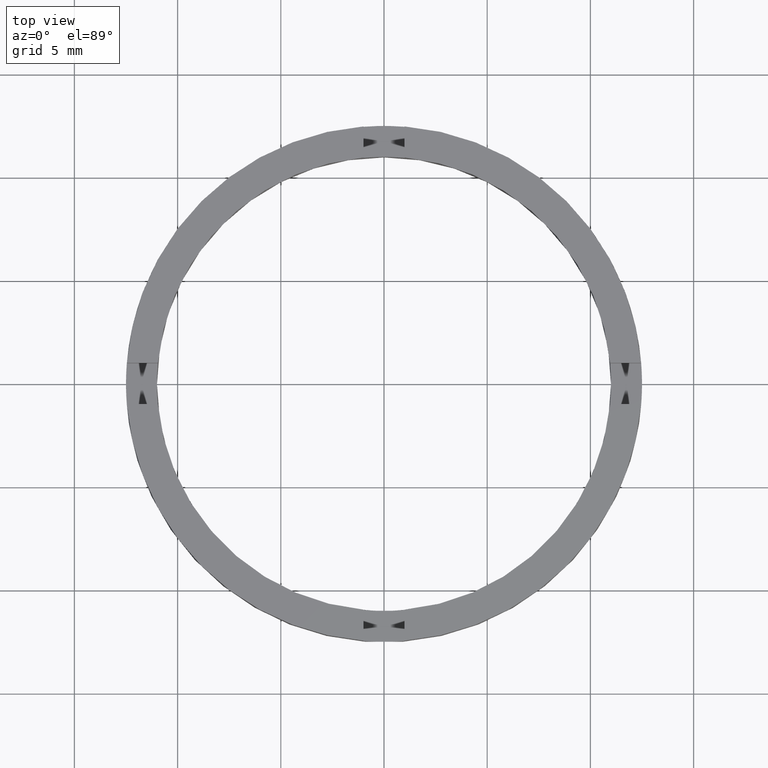
[diagram: clean part render]
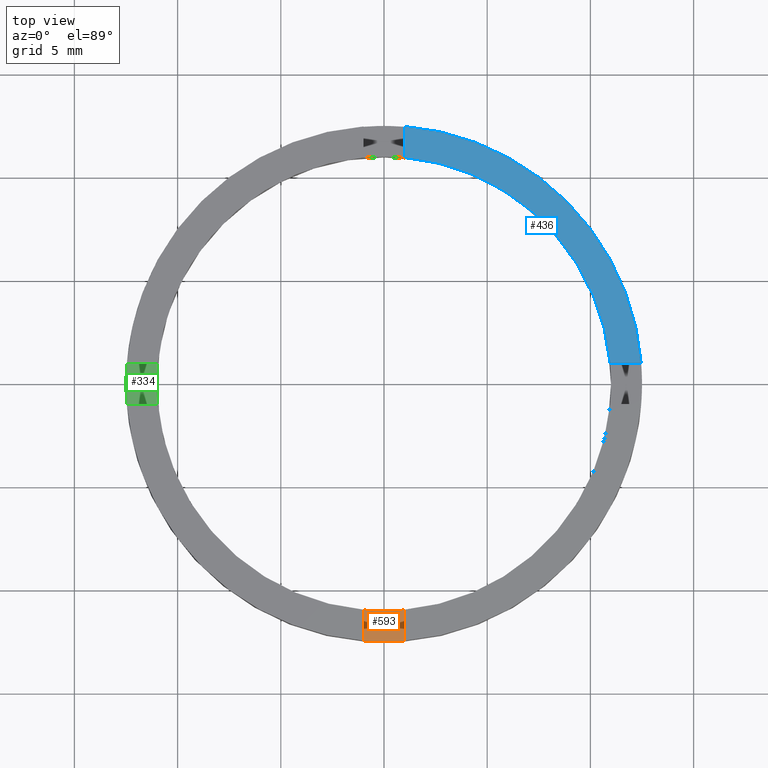
[diagram: same view with three faces highlighted in distinct colors, each labeled with its STEP entity id]
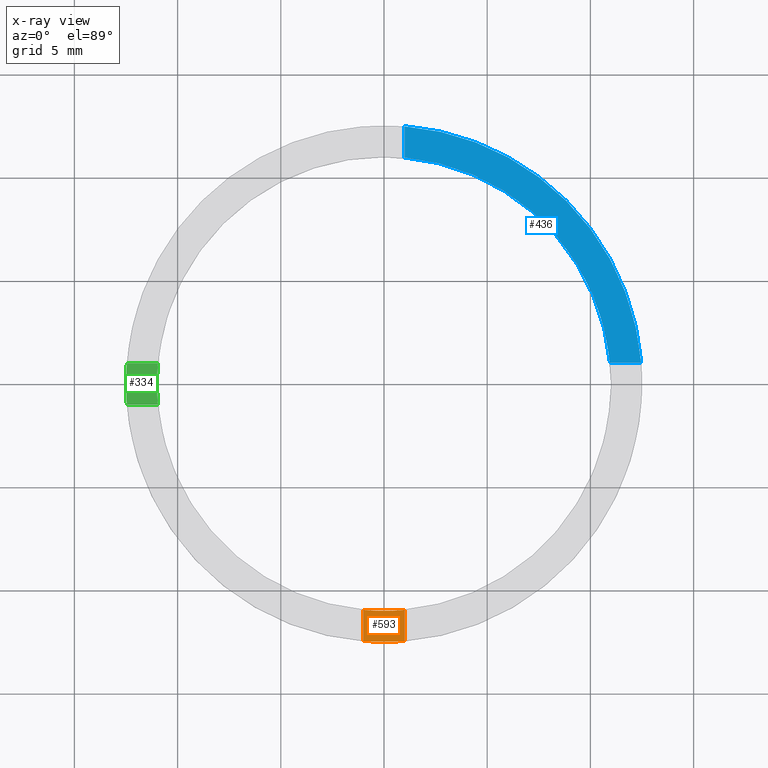
[diagram: x-ray of the same camera — body ghosted, the three highlighted faces saturated]
A machine part, top view with three faces highlighted in distinct colors.
The next image is the same camera in x-ray (body ghosted, the three faces saturated) — at least one of them is partly hidden behind the body in this view.
Their STEP definitions:

[orange] entity #593 — the highlighted planar face has unit normal (-0, 0, 1).
#46 = DIRECTION ( 'NONE',  ( 1.000000000000000000, 0.000000000000000000, 0.000000000000000000 ) ) ;
#52 = CARTESIAN_POINT ( 'NONE',  ( 0.9999999999998352429, -2.500000000000182521, 1.500000000000000000 ) ) ;
#68 = DIRECTION ( 'NONE',  ( 1.301042606982605567E-16, -1.000000000000000000, 0.000000000000000000 ) ) ;
#89 = DIRECTION ( 'NONE',  ( -1.301042606982605567E-16, 1.000000000000000000, -0.000000000000000000 ) ) ;
#136 = LINE ( 'NONE', #52, #404 ) ;
#156 = ORIENTED_EDGE ( 'NONE', *, *, #283, .T. ) ;
#177 = CARTESIAN_POINT ( 'NONE',  ( 0.9999999999998363531, -10.95445115010333659, 1.500000000000000000 ) ) ;
#194 = CIRCLE ( 'NONE', #390, 12.50000000000000000 ) ;
#216 = VERTEX_POINT ( 'NONE', #340 ) ;
#250 = EDGE_CURVE ( 'NONE', #515, #464, #652, .T. ) ;
#283 = EDGE_CURVE ( 'NONE', #409, #464, #136, .T. ) ;
#298 = LINE ( 'NONE', #596, #565 ) ;
#340 = CARTESIAN_POINT ( 'NONE',  ( -1.000000000000163647, -12.45993579437710075, 1.500000000000000000 ) ) ;
#344 = CARTESIAN_POINT ( 'NONE',  ( 0.000000000000000000, 0.000000000000000000, 1.500000000000000000 ) ) ;
#350 = DIRECTION ( 'NONE',  ( 1.000000000000000000, 0.000000000000000000, 0.000000000000000000 ) ) ;
#355 = AXIS2_PLACEMENT_3D ( 'NONE', #344, #564, #350 ) ;
#390 = AXIS2_PLACEMENT_3D ( 'NONE', #718, #610, #547 ) ;
#404 = VECTOR ( 'NONE', #89, 1000.000000000000000 ) ;
#409 = VERTEX_POINT ( 'NONE', #594 ) ;
#464 = VERTEX_POINT ( 'NONE', #177 ) ;
#484 = DIRECTION ( 'NONE',  ( -0.000000000000000000, 0.000000000000000000, 1.000000000000000000 ) ) ;
#492 = PLANE ( 'NONE',  #733 ) ;
#512 = ORIENTED_EDGE ( 'NONE', *, *, #598, .T. ) ;
#515 = VERTEX_POINT ( 'NONE', #584 ) ;
#517 = EDGE_LOOP ( 'NONE', ( #512, #156, #646, #688 ) ) ;
#547 = DIRECTION ( 'NONE',  ( 1.000000000000000000, 0.000000000000000000, 0.000000000000000000 ) ) ;
#564 = DIRECTION ( 'NONE',  ( -0.000000000000000000, 0.000000000000000000, 1.000000000000000000 ) ) ;
#565 = VECTOR ( 'NONE', #68, 1000.000000000000000 ) ;
#584 = CARTESIAN_POINT ( 'NONE',  ( -1.000000000000163647, -10.95445115010330639, 1.500000000000000000 ) ) ;
#593 = ADVANCED_FACE ( 'NONE', ( #715 ), #492, .T. ) ;
#594 = CARTESIAN_POINT ( 'NONE',  ( 0.9999999999998363531, -12.45993579437712739, 1.500000000000000000 ) ) ;
#596 = CARTESIAN_POINT ( 'NONE',  ( -1.000000000000164757, -2.500000000000182521, 1.500000000000000000 ) ) ;
#598 = EDGE_CURVE ( 'NONE', #216, #409, #194, .T. ) ;
#604 = EDGE_CURVE ( 'NONE', #515, #216, #298, .T. ) ;
#610 = DIRECTION ( 'NONE',  ( -0.000000000000000000, 0.000000000000000000, 1.000000000000000000 ) ) ;
#646 = ORIENTED_EDGE ( 'NONE', *, *, #250, .F. ) ;
#652 = CIRCLE ( 'NONE', #355, 11.00000000000000000 ) ;
#688 = ORIENTED_EDGE ( 'NONE', *, *, #604, .T. ) ;
#715 = FACE_OUTER_BOUND ( 'NONE', #517, .T. ) ;
#718 = CARTESIAN_POINT ( 'NONE',  ( 0.000000000000000000, 0.000000000000000000, 1.500000000000000000 ) ) ;
#733 = AXIS2_PLACEMENT_3D ( 'NONE', #773, #484, #46 ) ;
#773 = CARTESIAN_POINT ( 'NONE',  ( 0.000000000000000000, 0.000000000000000000, 1.500000000000000000 ) ) ;

[blue] entity #436 — the highlighted planar face has unit normal (0, 0, 1).
#10 = CARTESIAN_POINT ( 'NONE',  ( 0.9999999999999754641, 10.95445115010332415, 2.500000000000000000 ) ) ;
#48 = DIRECTION ( 'NONE',  ( 1.000000000000000000, 0.000000000000000000, -0.000000000000000000 ) ) ;
#50 = CARTESIAN_POINT ( 'NONE',  ( 12.45993579437712739, 0.9999999999998402389, 2.500000000000000000 ) ) ;
#77 = CARTESIAN_POINT ( 'NONE',  ( 2.499999999999998668, 0.9999999999998397948, 2.500000000000000000 ) ) ;
#78 = EDGE_CURVE ( 'NONE', #356, #507, #636, .T. ) ;
#108 = DIRECTION ( 'NONE',  ( 0.000000000000000000, 0.000000000000000000, 1.000000000000000000 ) ) ;
#119 = DIRECTION ( 'NONE',  ( 0.000000000000000000, 1.000000000000000000, 0.000000000000000000 ) ) ;
#199 = EDGE_CURVE ( 'NONE', #357, #507, #620, .T. ) ;
#208 = CARTESIAN_POINT ( 'NONE',  ( 10.95445115010333659, 0.9999999999998402389, 2.500000000000000000 ) ) ;
#215 = AXIS2_PLACEMENT_3D ( 'NONE', #289, #538, #48 ) ;
#230 = PLANE ( 'NONE',  #215 ) ;
#251 = ORIENTED_EDGE ( 'NONE', *, *, #703, .F. ) ;
#273 = CARTESIAN_POINT ( 'NONE',  ( 0.000000000000000000, 0.000000000000000000, 2.500000000000000000 ) ) ;
#289 = CARTESIAN_POINT ( 'NONE',  ( 0.000000000000000000, 0.000000000000000000, 2.500000000000000000 ) ) ;
#320 = DIRECTION ( 'NONE',  ( 1.000000000000000000, 0.000000000000000000, 0.000000000000000000 ) ) ;
#354 = CARTESIAN_POINT ( 'NONE',  ( 0.000000000000000000, 0.000000000000000000, 2.500000000000000000 ) ) ;
#356 = VERTEX_POINT ( 'NONE', #50 ) ;
#357 = VERTEX_POINT ( 'NONE', #10 ) ;
#360 = LINE ( 'NONE', #77, #617 ) ;
#386 = VECTOR ( 'NONE', #119, 1000.000000000000000 ) ;
#408 = FACE_OUTER_BOUND ( 'NONE', #740, .T. ) ;
#434 = ORIENTED_EDGE ( 'NONE', *, *, #78, .T. ) ;
#436 = ADVANCED_FACE ( 'NONE', ( #408 ), #230, .T. ) ;
#438 = AXIS2_PLACEMENT_3D ( 'NONE', #354, #441, #455 ) ;
#441 = DIRECTION ( 'NONE',  ( 0.000000000000000000, 0.000000000000000000, 1.000000000000000000 ) ) ;
#455 = DIRECTION ( 'NONE',  ( 1.000000000000000000, 0.000000000000000000, 0.000000000000000000 ) ) ;
#456 = ORIENTED_EDGE ( 'NONE', *, *, #514, .F. ) ;
#507 = VERTEX_POINT ( 'NONE', #542 ) ;
#514 = EDGE_CURVE ( 'NONE', #356, #691, #360, .T. ) ;
#528 = CARTESIAN_POINT ( 'NONE',  ( 0.9999999999999754641, 2.500000000000002220, 2.500000000000000000 ) ) ;
#529 = ORIENTED_EDGE ( 'NONE', *, *, #199, .F. ) ;
#538 = DIRECTION ( 'NONE',  ( 0.000000000000000000, 0.000000000000000000, 1.000000000000000000 ) ) ;
#542 = CARTESIAN_POINT ( 'NONE',  ( 0.9999999999999754641, 12.45993579437711674, 2.500000000000000000 ) ) ;
#554 = AXIS2_PLACEMENT_3D ( 'NONE', #273, #108, #320 ) ;
#563 = CIRCLE ( 'NONE', #554, 11.00000000000000000 ) ;
#581 = DIRECTION ( 'NONE',  ( -1.000000000000000000, -4.336808689942018352E-17, -0.000000000000000000 ) ) ;
#617 = VECTOR ( 'NONE', #581, 1000.000000000000000 ) ;
#620 = LINE ( 'NONE', #528, #386 ) ;
#636 = CIRCLE ( 'NONE', #438, 12.50000000000000000 ) ;
#691 = VERTEX_POINT ( 'NONE', #208 ) ;
#703 = EDGE_CURVE ( 'NONE', #691, #357, #563, .T. ) ;
#740 = EDGE_LOOP ( 'NONE', ( #529, #251, #456, #434 ) ) ;

[green] entity #334 — the highlighted planar face has unit normal (0, 0, 1).
#1 = VERTEX_POINT ( 'NONE', #704 ) ;
#4 = CARTESIAN_POINT ( 'NONE',  ( 0.000000000000000000, 0.000000000000000000, 1.500000000000000000 ) ) ;
#7 = DIRECTION ( 'NONE',  ( 1.000000000000000000, 0.000000000000000000, 0.000000000000000000 ) ) ;
#15 = CARTESIAN_POINT ( 'NONE',  ( -10.95445115010332415, 0.9999999999999781286, 1.500000000000000000 ) ) ;
#55 = DIRECTION ( 'NONE',  ( 1.000000000000000000, 0.000000000000000000, 0.000000000000000000 ) ) ;
#58 = DIRECTION ( 'NONE',  ( -1.000000000000000000, -1.734723475976807341E-16, 0.000000000000000000 ) ) ;
#80 = AXIS2_PLACEMENT_3D ( 'NONE', #4, #87, #7 ) ;
#84 = CARTESIAN_POINT ( 'NONE',  ( -12.50000000000000000, 0.000000000000000000, 1.500000000000000000 ) ) ;
#87 = DIRECTION ( 'NONE',  ( 0.000000000000000000, 0.000000000000000000, 1.000000000000000000 ) ) ;
#107 = ORIENTED_EDGE ( 'NONE', *, *, #543, .F. ) ;
#120 = CARTESIAN_POINT ( 'NONE',  ( -2.500000000000186073, 0.9999999999999796829, 1.500000000000000000 ) ) ;
#158 = DIRECTION ( 'NONE',  ( 1.000000000000000000, 1.734723475976807341E-16, -0.000000000000000000 ) ) ;
#171 = VERTEX_POINT ( 'NONE', #607 ) ;
#179 = AXIS2_PLACEMENT_3D ( 'NONE', #299, #587, #583 ) ;
#180 = ORIENTED_EDGE ( 'NONE', *, *, #585, .T. ) ;
#196 = VECTOR ( 'NONE', #158, 1000.000000000000000 ) ;
#236 = CARTESIAN_POINT ( 'NONE',  ( -12.45993579437711496, 0.9999999999999779066, 1.500000000000000000 ) ) ;
#241 = ORIENTED_EDGE ( 'NONE', *, *, #284, .F. ) ;
#277 = AXIS2_PLACEMENT_3D ( 'NONE', #297, #336, #55 ) ;
#284 = EDGE_CURVE ( 'NONE', #752, #171, #671, .T. ) ;
#297 = CARTESIAN_POINT ( 'NONE',  ( 0.000000000000000000, 0.000000000000000000, 1.500000000000000000 ) ) ;
#299 = CARTESIAN_POINT ( 'NONE',  ( 0.000000000000000000, 0.000000000000000000, 1.500000000000000000 ) ) ;
#300 = LINE ( 'NONE', #120, #302 ) ;
#302 = VECTOR ( 'NONE', #58, 1000.000000000000000 ) ;
#304 = CARTESIAN_POINT ( 'NONE',  ( -10.95445115010331882, -1.000000000000021982, 1.500000000000000000 ) ) ;
#328 = PLANE ( 'NONE',  #744 ) ;
#334 = ADVANCED_FACE ( 'NONE', ( #641 ), #328, .T. ) ;
#336 = DIRECTION ( 'NONE',  ( 0.000000000000000000, 0.000000000000000000, 1.000000000000000000 ) ) ;
#369 = CIRCLE ( 'NONE', #80, 11.00000000000000000 ) ;
#370 = ORIENTED_EDGE ( 'NONE', *, *, #690, .T. ) ;
#375 = EDGE_CURVE ( 'NONE', #532, #525, #663, .T. ) ;
#379 = LINE ( 'NONE', #705, #196 ) ;
#387 = EDGE_LOOP ( 'NONE', ( #693, #389, #180, #107, #241, #370 ) ) ;
#389 = ORIENTED_EDGE ( 'NONE', *, *, #467, .T. ) ;
#467 = EDGE_CURVE ( 'NONE', #525, #1, #665, .T. ) ;
#473 = CARTESIAN_POINT ( 'NONE',  ( 0.000000000000000000, 0.000000000000000000, 1.500000000000000000 ) ) ;
#525 = VERTEX_POINT ( 'NONE', #84 ) ;
#532 = VERTEX_POINT ( 'NONE', #236 ) ;
#543 = EDGE_CURVE ( 'NONE', #171, #779, #369, .T. ) ;
#551 = DIRECTION ( 'NONE',  ( 0.000000000000000000, 0.000000000000000000, 1.000000000000000000 ) ) ;
#583 = DIRECTION ( 'NONE',  ( 1.000000000000000000, 0.000000000000000000, 0.000000000000000000 ) ) ;
#585 = EDGE_CURVE ( 'NONE', #1, #779, #379, .T. ) ;
#587 = DIRECTION ( 'NONE',  ( 0.000000000000000000, 0.000000000000000000, 1.000000000000000000 ) ) ;
#607 = CARTESIAN_POINT ( 'NONE',  ( -11.00000000000000000, 0.000000000000000000, 1.500000000000000000 ) ) ;
#614 = DIRECTION ( 'NONE',  ( 0.000000000000000000, 0.000000000000000000, 1.000000000000000000 ) ) ;
#641 = FACE_OUTER_BOUND ( 'NONE', #387, .T. ) ;
#663 = CIRCLE ( 'NONE', #708, 12.50000000000000000 ) ;
#665 = CIRCLE ( 'NONE', #179, 12.50000000000000000 ) ;
#671 = CIRCLE ( 'NONE', #277, 11.00000000000000000 ) ;
#690 = EDGE_CURVE ( 'NONE', #752, #532, #300, .T. ) ;
#693 = ORIENTED_EDGE ( 'NONE', *, *, #375, .T. ) ;
#704 = CARTESIAN_POINT ( 'NONE',  ( -12.45993579437711141, -1.000000000000022204, 1.500000000000000000 ) ) ;
#705 = CARTESIAN_POINT ( 'NONE',  ( -2.500000000000186073, -1.000000000000020428, 1.500000000000000000 ) ) ;
#706 = DIRECTION ( 'NONE',  ( 1.000000000000000000, 0.000000000000000000, -0.000000000000000000 ) ) ;
#708 = AXIS2_PLACEMENT_3D ( 'NONE', #710, #551, #776 ) ;
#710 = CARTESIAN_POINT ( 'NONE',  ( 0.000000000000000000, 0.000000000000000000, 1.500000000000000000 ) ) ;
#744 = AXIS2_PLACEMENT_3D ( 'NONE', #473, #614, #706 ) ;
#752 = VERTEX_POINT ( 'NONE', #15 ) ;
#776 = DIRECTION ( 'NONE',  ( 1.000000000000000000, 0.000000000000000000, 0.000000000000000000 ) ) ;
#779 = VERTEX_POINT ( 'NONE', #304 ) ;